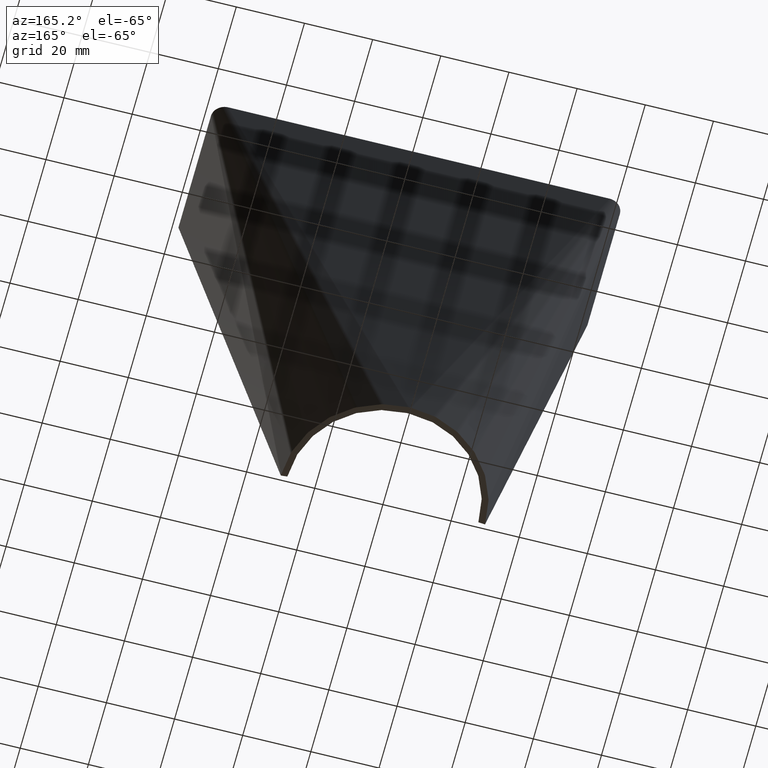
[diagram: clean part render]
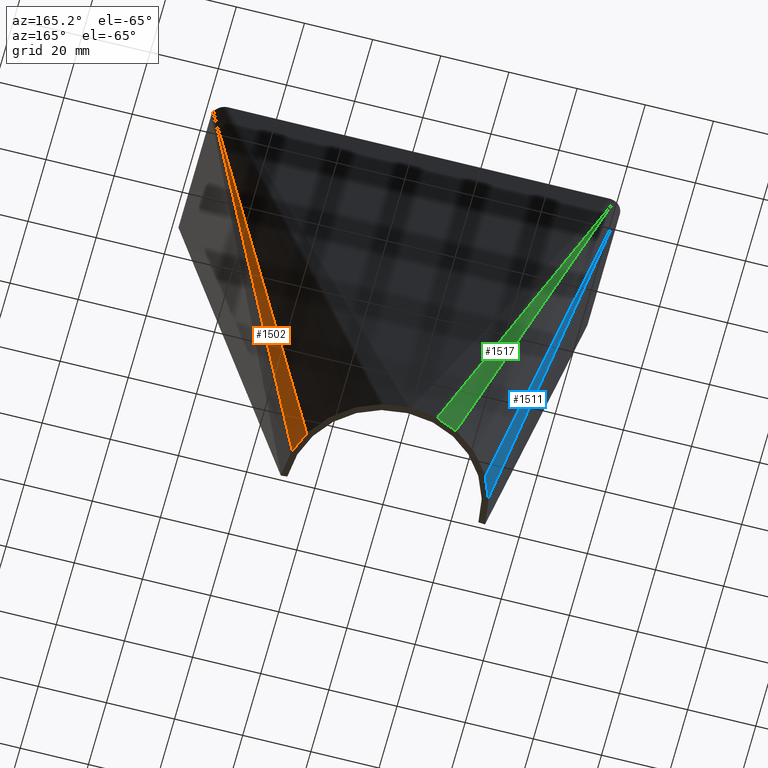
[diagram: same view with three faces highlighted in distinct colors, each labeled with its STEP entity id]
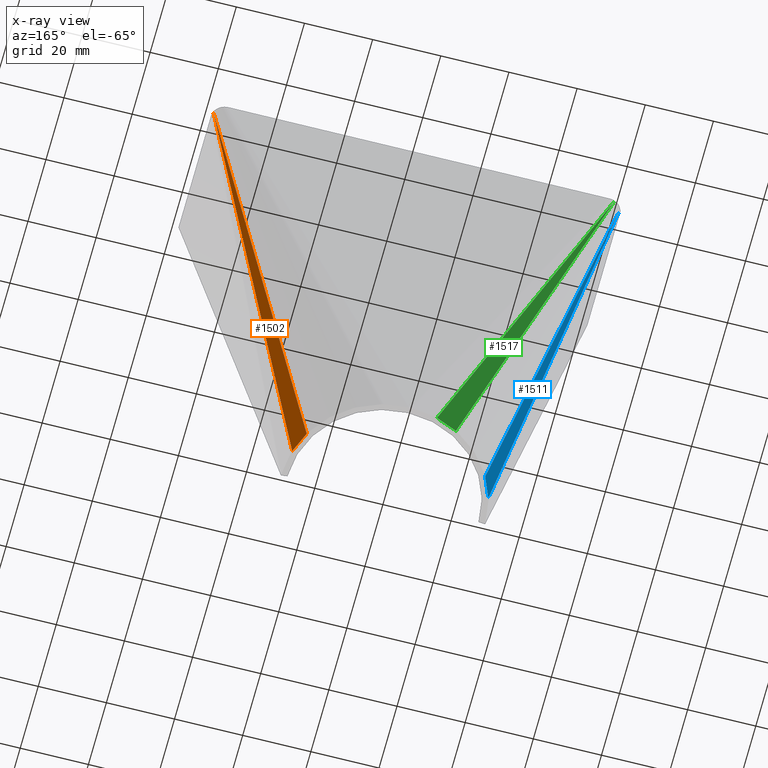
[diagram: x-ray of the same camera — body ghosted, the three highlighted faces saturated]
A machine part, auxiliary view with three faces highlighted in distinct colors.
The next image is the same camera in x-ray (body ghosted, the three faces saturated) — at least one of them is partly hidden behind the body in this view.
Their STEP definitions:

[orange] entity #1502 — the highlighted planar face has unit normal (0.893, 0.3699, -0.2563).
#203=FACE_OUTER_BOUND($,#312,.T.);
#312=EDGE_LOOP($,(#1147,#1148,#1149));
#450=LINE($,#2357,#598);
#451=LINE($,#2361,#599);
#452=LINE($,#2362,#600);
#598=VECTOR($,#1941,155.414488283742);
#599=VECTOR($,#1946,155.932026839396);
#600=VECTOR($,#1947,6.8045422529675);
#743=VERTEX_POINT($,#2354);
#744=VERTEX_POINT($,#2356);
#745=VERTEX_POINT($,#2360);
#891=EDGE_CURVE($,#743,#744,#450,.T.);
#893=EDGE_CURVE($,#743,#745,#451,.T.);
#894=EDGE_CURVE($,#745,#744,#452,.T.);
#1147=ORIENTED_EDGE($,*,*,#891,.F.);
#1148=ORIENTED_EDGE($,*,*,#893,.T.);
#1149=ORIENTED_EDGE($,*,*,#894,.T.);
#1430=PLANE($,#1652);
#1502=ADVANCED_FACE($,(#203),#1430,.T.);
#1652=AXIS2_PLACEMENT_3D($,#2359,#1944,#1945);
#1941=DIRECTION($,(-0.215701118037727,-0.148112484631984,-0.965160981170196));
#1944=DIRECTION('center_axis',(0.893009615656661,0.369896694134574,-0.256340129540923));
#1945=DIRECTION('ref_axis',(-0.275909599979536,0.,-0.961183589455798));
#1946=DIRECTION($,(-0.198285714126393,-0.187937038446385,-0.961957610892179));
#1947=DIRECTION($,(-0.38268343236509,0.923879532511287,0.));
#2354=CARTESIAN_POINT('',(59.6987136307352,37.5483618488287,0.));
#2356=CARTESIAN_POINT('',(26.1756347486708,14.5295358413153,-150.));
#2357=CARTESIAN_POINT($,(59.6987136307352,37.5483618488287,0.));
#2359=CARTESIAN_POINT('Origin',(59.6987136307352,37.5483618488287,0.));
#2360=CARTESIAN_POINT('',(28.7796203337097,8.2429585256904,-150.));
#2361=CARTESIAN_POINT($,(59.6987136307352,37.5483618488287,0.));
#2362=CARTESIAN_POINT($,(28.977774788672,7.76457135307562,-150.));

[blue] entity #1511 — the highlighted planar face has unit normal (-0.893, 0.3699, -0.2563).
#212=FACE_OUTER_BOUND($,#321,.T.);
#321=EDGE_LOOP($,(#1180,#1181,#1182));
#463=LINE($,#2398,#611);
#464=LINE($,#2402,#612);
#465=LINE($,#2403,#613);
#611=VECTOR($,#1988,155.932026839396);
#612=VECTOR($,#1993,155.414488283742);
#613=VECTOR($,#1994,6.80454225296744);
#754=VERTEX_POINT($,#2395);
#755=VERTEX_POINT($,#2397);
#756=VERTEX_POINT($,#2401);
#912=EDGE_CURVE($,#754,#755,#463,.T.);
#914=EDGE_CURVE($,#754,#756,#464,.T.);
#915=EDGE_CURVE($,#756,#755,#465,.T.);
#1180=ORIENTED_EDGE($,*,*,#912,.F.);
#1181=ORIENTED_EDGE($,*,*,#914,.T.);
#1182=ORIENTED_EDGE($,*,*,#915,.T.);
#1435=PLANE($,#1669);
#1511=ADVANCED_FACE($,(#212),#1435,.T.);
#1669=AXIS2_PLACEMENT_3D($,#2400,#1991,#1992);
#1988=DIRECTION($,(0.198285714126393,-0.187937038446385,-0.961957610892179));
#1991=DIRECTION('center_axis',(-0.893009615656661,0.369896694134574,-0.256340129540922));
#1992=DIRECTION('ref_axis',(-0.275909599979536,0.,0.961183589455798));
#1993=DIRECTION($,(0.215701118037727,-0.148112484631984,-0.965160981170196));
#1994=DIRECTION($,(-0.38268343236509,-0.923879532511287,0.));
#2395=CARTESIAN_POINT('',(-59.6987136307352,37.5483618488287,0.));
#2397=CARTESIAN_POINT('',(-28.7796203337097,8.24295852569042,-150.));
#2398=CARTESIAN_POINT($,(-59.6987136307352,37.5483618488287,-1.60571524523011E-015));
#2400=CARTESIAN_POINT('Origin',(-59.6987136307352,37.5483618488287,-1.60571524523011E-015));
#2401=CARTESIAN_POINT('',(-26.1756347486709,14.5295358413153,-150.));
#2402=CARTESIAN_POINT($,(-59.6987136307352,37.5483618488287,0.));
#2403=CARTESIAN_POINT($,(-25.9807621135332,15.,-150.));

[green] entity #1517 — the highlighted planar face has unit normal (-0.3758, 0.9072, -0.1894).
#218=FACE_OUTER_BOUND($,#327,.T.);
#327=EDGE_LOOP($,(#1201,#1202,#1203));
#472=LINE($,#2428,#620);
#473=LINE($,#2432,#621);
#474=LINE($,#2433,#622);
#620=VECTOR($,#2021,156.637440223747);
#621=VECTOR($,#2026,158.261310103501);
#622=VECTOR($,#2027,6.73196954552431);
#763=VERTEX_POINT($,#2425);
#764=VERTEX_POINT($,#2427);
#765=VERTEX_POINT($,#2431);
#927=EDGE_CURVE($,#763,#764,#472,.T.);
#929=EDGE_CURVE($,#763,#765,#473,.T.);
#930=EDGE_CURVE($,#765,#764,#474,.T.);
#1201=ORIENTED_EDGE($,*,*,#927,.F.);
#1202=ORIENTED_EDGE($,*,*,#929,.T.);
#1203=ORIENTED_EDGE($,*,*,#930,.T.);
#1438=PLANE($,#1681);
#1517=ADVANCED_FACE($,(#218),#1438,.T.);
#1681=AXIS2_PLACEMENT_3D($,#2430,#2024,#2025);
#2021=DIRECTION($,(0.274847556163133,-0.0860947638982127,-0.957625455227911));
#2024=DIRECTION('center_axis',(-0.375756638325136,0.907156772396263,-0.189403112567316));
#2025=DIRECTION('ref_axis',(0.,0.204380443331132,0.978891533513172));
#2026=DIRECTION($,(0.311326542750861,-0.0689331474274456,-0.947799559487417));
#2027=DIRECTION($,(-0.923879532511287,-0.38268343236509,0.));
#2425=CARTESIAN_POINT('',(-57.5548054654658,39.6721290489369,7.57258293137332E-018));
#2427=CARTESIAN_POINT('',(-14.5033878163201,26.1864656152531,-150.));
#2428=CARTESIAN_POINT($,(-57.5548054654657,39.6721290489369,4.30925307386524E-015));
#2430=CARTESIAN_POINT('Origin',(-57.5548054654657,39.6721290489369,4.30925307386524E-015));
#2431=CARTESIAN_POINT('',(-8.2838589397209,28.7626788275116,-150.));
#2432=CARTESIAN_POINT($,(-57.5548054654658,39.6721290489369,7.57258293137332E-018));
#2433=CARTESIAN_POINT($,(-7.76457135307564,28.9777747886721,-150.));